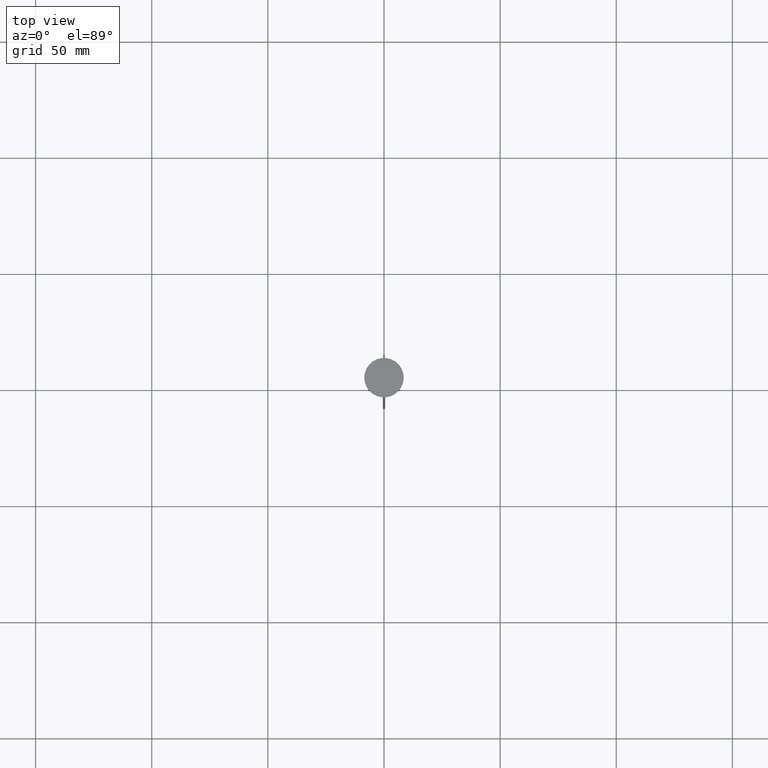
[diagram: clean part render]
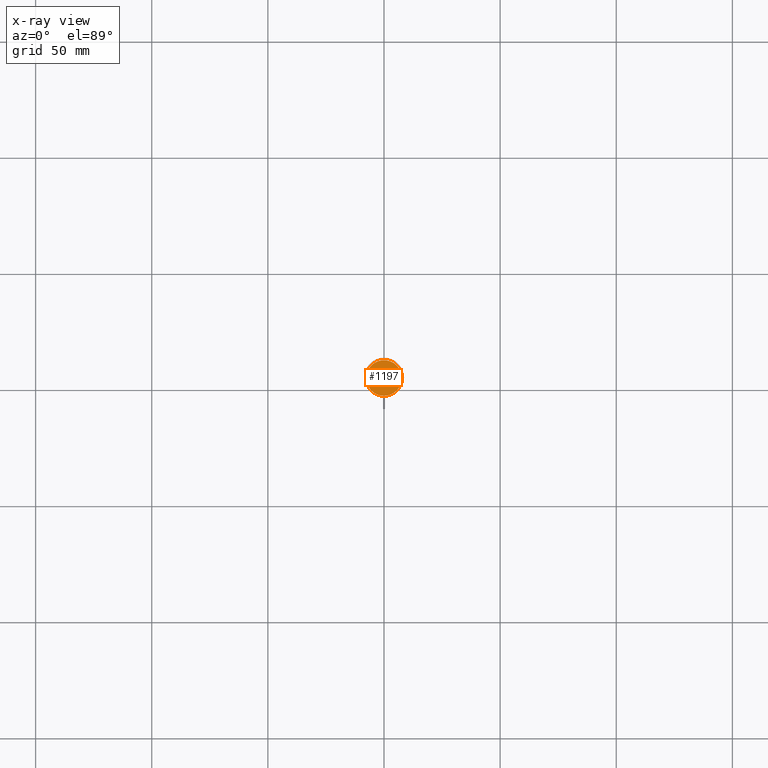
[diagram: x-ray — body ghosted, one internal face saturated and labeled with its STEP entity id]
A machine part, top view, then the same camera in x-ray: the body is ghosted and one INTERNAL B-rep face — a face not visible from any outside direction — is saturated and labeled: STEP entity #1197.
In plain terms, the highlighted planar face has unit normal (0, 0, -1).
Its self-contained STEP definition (entity closure, byte-faithful):
#94 = AXIS2_PLACEMENT_3D ( 'NONE', #144, #1460, #2406 ) ;
#125 = CARTESIAN_POINT ( 'NONE',  ( 0.000000000000000000, 0.000000000000000000, -12.00000000000000000 ) ) ;
#136 = CIRCLE ( 'NONE', #94, 7.700000000000001954 ) ;
#144 = CARTESIAN_POINT ( 'NONE',  ( 0.000000000000000000, 0.000000000000000000, -12.00000000000000000 ) ) ;
#238 = ORIENTED_EDGE ( 'NONE', *, *, #1513, .T. ) ;
#340 = CIRCLE ( 'NONE', #428, 7.700000000000001954 ) ;
#428 = AXIS2_PLACEMENT_3D ( 'NONE', #1262, #731, #2034 ) ;
#446 = CARTESIAN_POINT ( 'NONE',  ( -7.700000000000001954, 0.000000000000000000, -12.00000000000000000 ) ) ;
#507 = AXIS2_PLACEMENT_3D ( 'NONE', #125, #898, #1674 ) ;
#731 = DIRECTION ( 'NONE',  ( -0.000000000000000000, -0.000000000000000000, 1.000000000000000000 ) ) ;
#780 = VERTEX_POINT ( 'NONE', #1117 ) ;
#898 = DIRECTION ( 'NONE',  ( 0.000000000000000000, 0.000000000000000000, -1.000000000000000000 ) ) ;
#1005 = VERTEX_POINT ( 'NONE', #446 ) ;
#1086 = FACE_OUTER_BOUND ( 'NONE', #1748, .T. ) ;
#1099 = EDGE_CURVE ( 'NONE', #780, #1005, #136, .T. ) ;
#1117 = CARTESIAN_POINT ( 'NONE',  ( 7.700000000000001954, 9.613477373306725302E-16, -12.00000000000000000 ) ) ;
#1197 = ADVANCED_FACE ( 'NONE', ( #1086 ), #1864, .F. ) ;
#1262 = CARTESIAN_POINT ( 'NONE',  ( 0.000000000000000000, 0.000000000000000000, -12.00000000000000000 ) ) ;
#1460 = DIRECTION ( 'NONE',  ( -0.000000000000000000, -0.000000000000000000, 1.000000000000000000 ) ) ;
#1513 = EDGE_CURVE ( 'NONE', #1005, #780, #340, .T. ) ;
#1674 = DIRECTION ( 'NONE',  ( -1.000000000000000000, 0.000000000000000000, -0.000000000000000000 ) ) ;
#1748 = EDGE_LOOP ( 'NONE', ( #238, #1843 ) ) ;
#1843 = ORIENTED_EDGE ( 'NONE', *, *, #1099, .T. ) ;
#1864 = PLANE ( 'NONE',  #507 ) ;
#2034 = DIRECTION ( 'NONE',  ( -1.000000000000000000, 0.000000000000000000, 0.000000000000000000 ) ) ;
#2406 = DIRECTION ( 'NONE',  ( -1.000000000000000000, 0.000000000000000000, 0.000000000000000000 ) ) ;